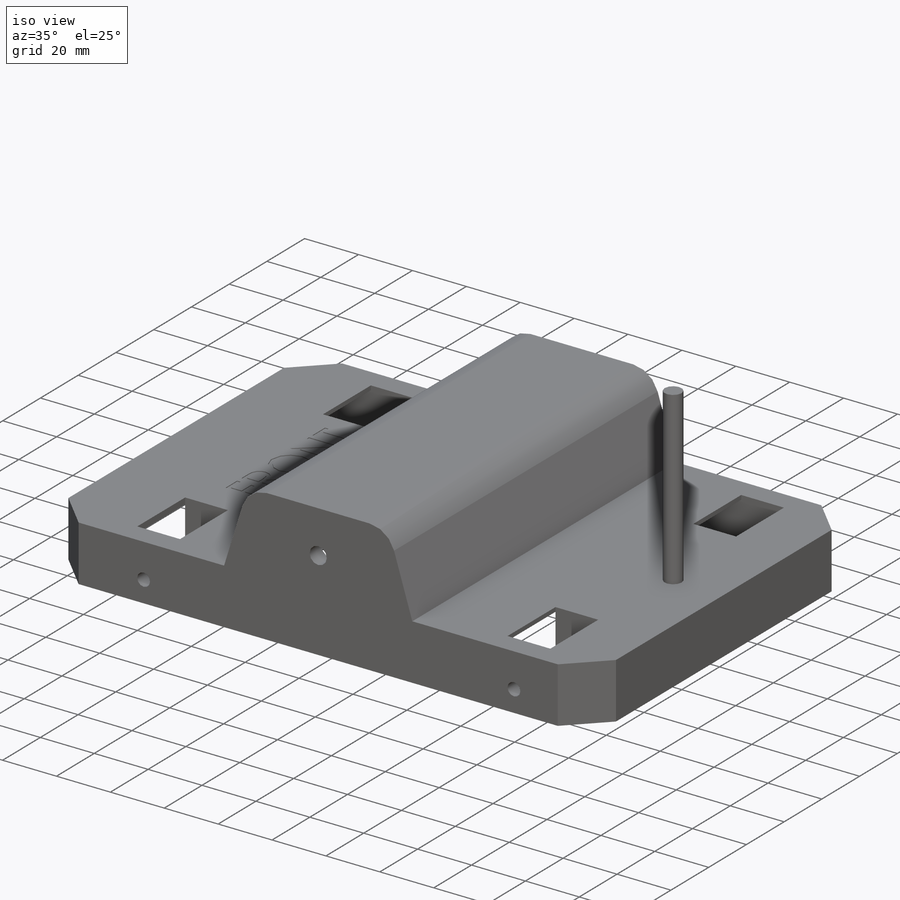
[diagram: iso view]
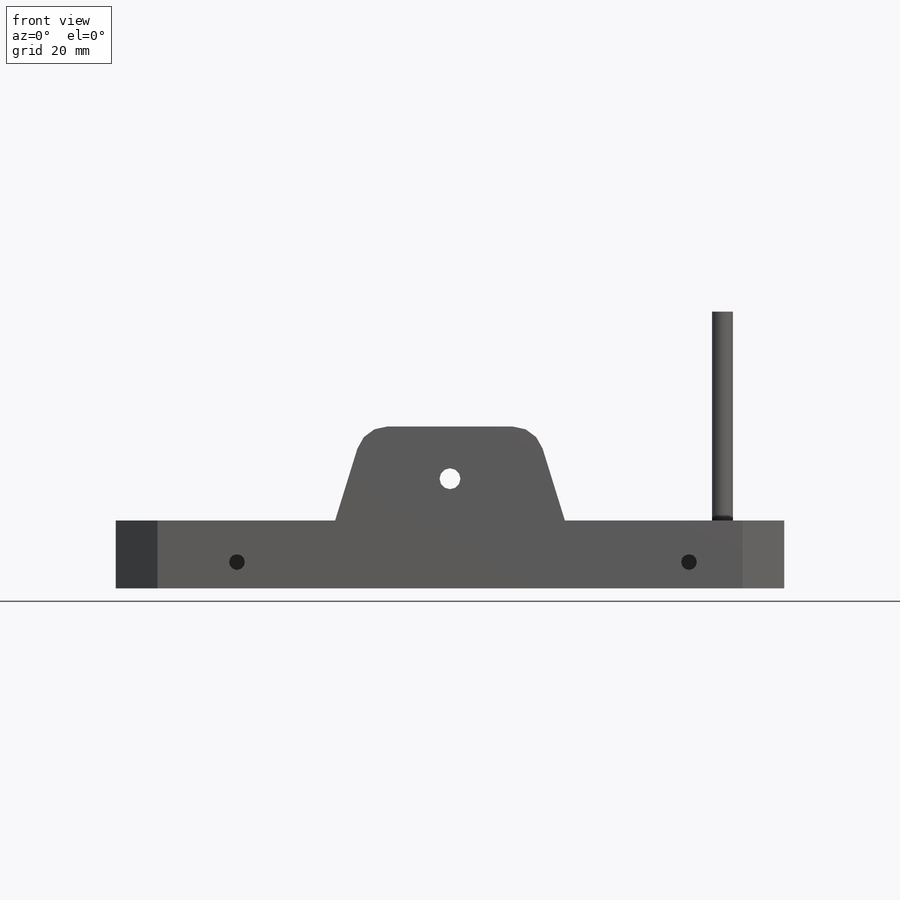
[diagram: front view]
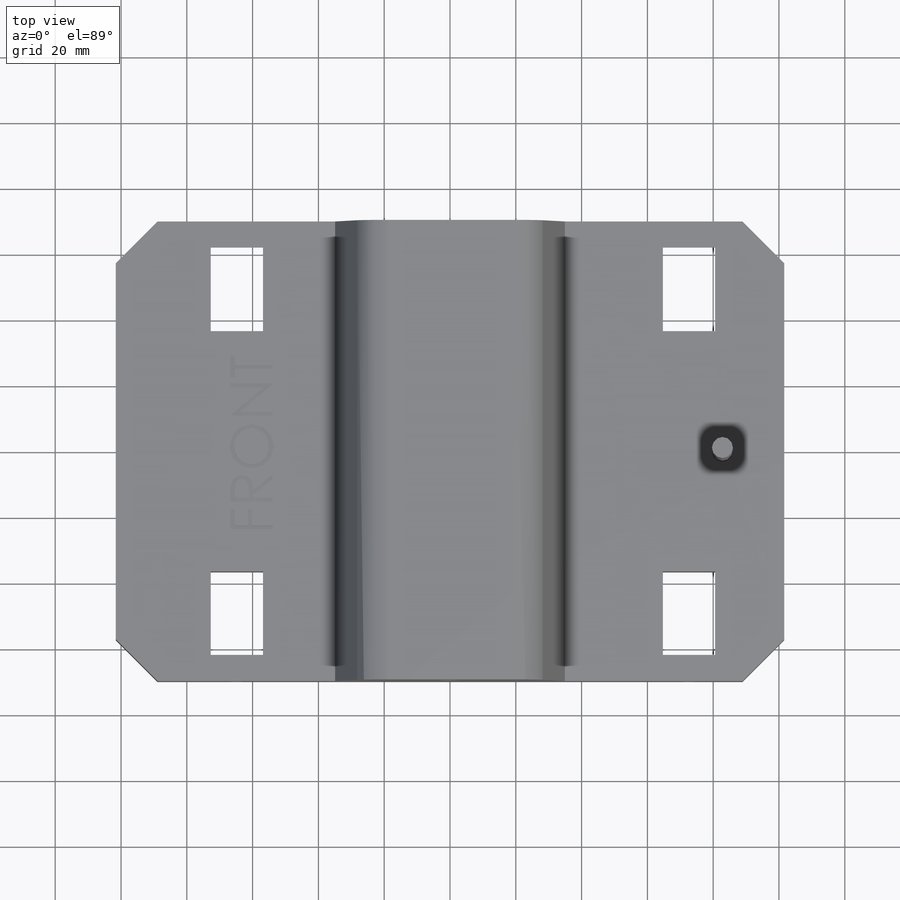
[diagram: top view]
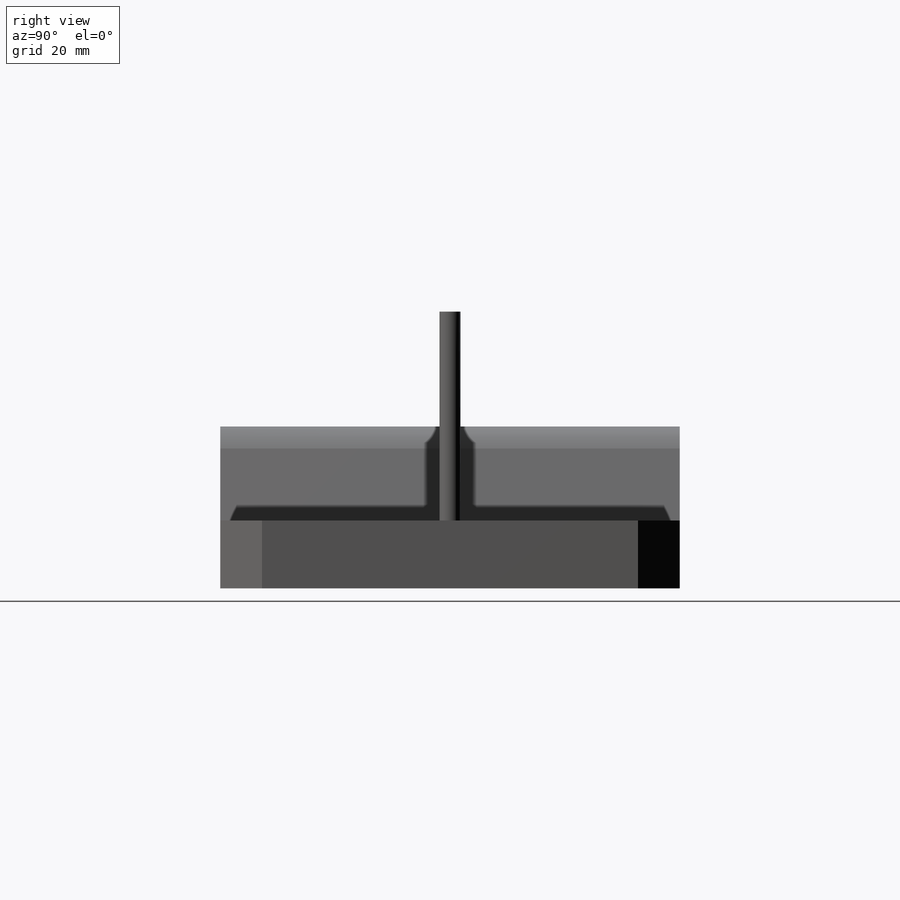
[diagram: right view]
SOLIDWORKS PART (.sldprt)
format: sldprt  version: not decoded by parser v0  size: 536,576 bytes
history: native  units: mm
features: sketch x11, extrude x7, cut_extrude x4, chamfer x2, material x1, mirror x1 (+14 scaffold rows collapsed)
feature tree (40):
  scaffold x14  (default folders/planes/origin — collapsed)
  material  "Material <not specified>"
  sketch  "Sketch1"  dims[D1=203.2mm D2=139.7mm]
  extrude  "Boss-Extrude1"  Depth=1.5875mm
  sketch  "Sketch2"  dims[D7=19.05mm D1=123.825mm D2=25.4mm D3=137.414mm D4=61.9125mm D5=15.875mm D6=64.77mm]
  cut_extrude  "Cut-Extrude1"  [1 undecoded]
  chamfer  "Chamfer1"  Distance=12.7mm Angle=45deg
  sketch  "Sketch3"  dims[D1=0.0mm D2=6.35mm]
  extrude  "Boss-Extrude2"  Depth=19.05mm
  sketch  "Sketch5"  dims[c1.D1=~19.304333mm c1.D2=4.7752mm c2.D1=137.414mm c2.D3=64.77mm c2.D4=12.7mm]
  cut_extrude  "Cut-Extrude2"  Depth=139.7mm
  sketch  "Sketch7"  dims[c1.D1=50.8mm c1.D2=50.8mm c2.D2=90.0deg c3.D2=69.85mm c3.D3=25.4mm c3.D1=50.8mm c4.D2=53.975mm]
  cut_extrude  "Cut-Extrude4"  Depth=0.254mm
  chamfer  "Chamfer2"  Distance=3.175mm Angle=15deg
  sketch  "Sketch13"  dims[c1.D1=~34.149234mm c1.D2=19.05mm c1.D3=17.78mm c1.D4=3.175mm c2.D3=36.83mm c2.D1=26.67mm]
  extrude  "Boss-Extrude3"  Depth=67.056mm
  sketch  "Sketch14"  dims[D1=6.35mm D2=82.804mm]
  extrude  "Boss-Extrude4"  Depth=63.5mm
  sketch  "Sketch15"  dims[D1=4.7752mm]
  extrude  "Boss-Extrude5"  Depth=19.05mm
  sketch  "Sketch16"  dims[c1.D4=9.525mm c1.D1=25.4mm c1.D2=28.575mm c1.D3=69.85mm c2.D1=38.1mm c2.D5=3.175mm]
  extrude  "Boss-Extrude6"  Depth=139.7mm
  sketch  "Sketch19"  dims[D1=54.5084mm]
  cut_extrude  "Cut-Extrude6"  [1 undecoded]
  sketch  "Sketch20"  dims[D1=6.35mm D2=12.7mm]
  extrude  "Boss-Extrude7"  Depth=6.35mm
  mirror  "Mirror1"
decode coverage: 22 of 25 modeling features carry decoded parameters
note: ~ marks probable driven/reference dimensions
note: 2 parameter values undecoded
note: suppression state not decoded; provenance and decode notes live in map.json
